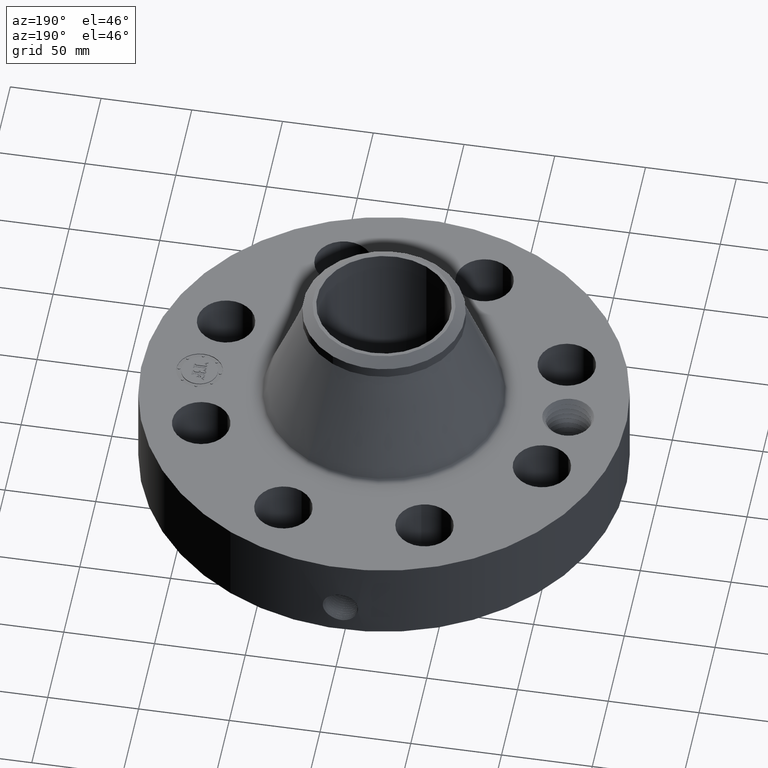
[diagram: clean part render]
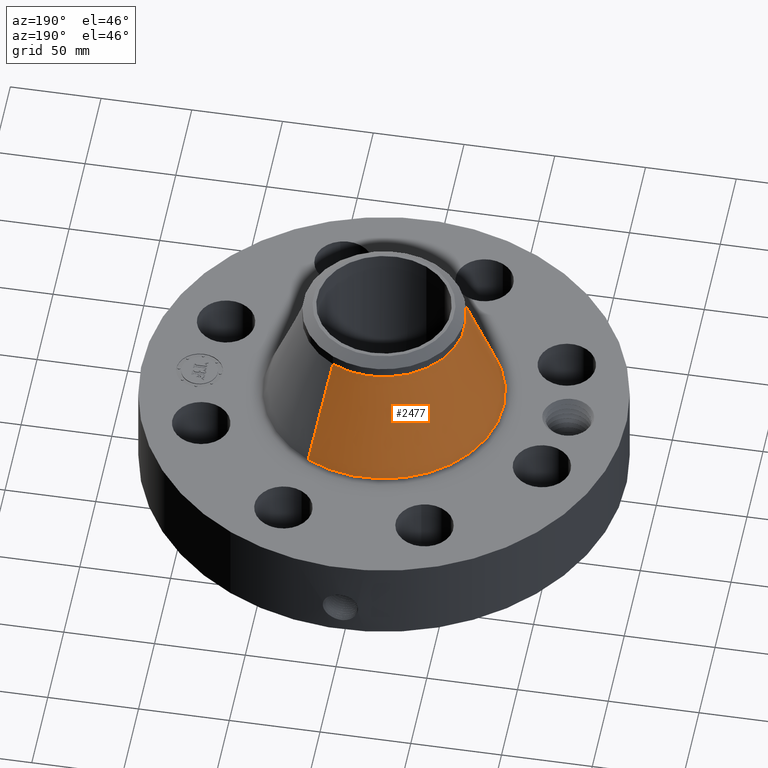
[diagram: same view with one face highlighted and labeled with its STEP entity id]
A machine part, auxiliary view. The second image highlights one B-rep face of the part: STEP entity #2477.
In plain terms, the highlighted conical surface has half-angle 20.551 deg.
Its self-contained STEP definition (entity closure, byte-faithful):
#1827=AXIS2_PLACEMENT_3D('Circle Axis2P3D',#1825,#1826,$) ;
#2438=AXIS2_PLACEMENT_3D('Cone Axis2P3D',#2435,#2436,#2437) ;
#2468=AXIS2_PLACEMENT_3D('Circle Axis2P3D',#2466,#2467,$) ;
#1803=CARTESIAN_POINT('Vertex',(1.24449518395,2.27803315394,2.20787575279)) ;
#1810=CARTESIAN_POINT('Vertex',(-1.24449518395,-2.27803315394,2.20787575279)) ;
#1825=CARTESIAN_POINT('Axis2P3D Location',(0.,0.,2.20787575279)) ;
#2435=CARTESIAN_POINT('Axis2P3D Location',(0.,0.,4.46400087906)) ;
#2440=CARTESIAN_POINT('Line Origine',(1.04174493825,1.90690131863,3.33593831592)) ;
#2444=CARTESIAN_POINT('Vertex',(0.838994692561,1.53576948331,4.46400087906)) ;
#2451=CARTESIAN_POINT('Vertex',(-0.838994692561,-1.53576948331,4.46400087906)) ;
#2454=CARTESIAN_POINT('Line Origine',(-1.04174493825,-1.90690131863,3.33593831592)) ;
#2466=CARTESIAN_POINT('Axis2P3D Location',(0.,0.,4.46400087906)) ;
#1826=DIRECTION('Axis2P3D Direction',(0.,0.,-0.0393700787402)) ;
#2436=DIRECTION('Axis2P3D Direction',(0.,0.,-0.0393700787402)) ;
#2437=DIRECTION('Axis2P3D XDirection',(-0.0188750212049,-0.0345504945626,0.)) ;
#2441=DIRECTION('Vector Direction',(0.00662580049611,0.0121284464546,-0.0368646531842)) ;
#2455=DIRECTION('Vector Direction',(-0.00662580049611,-0.0121284464546,-0.0368646531842)) ;
#2467=DIRECTION('Axis2P3D Direction',(0.,0.,-0.0393700787402)) ;
#2442=VECTOR('Line Direction',#2441,0.0393700787402) ;
#2456=VECTOR('Line Direction',#2455,0.0393700787402) ;
#2472=ORIENTED_EDGE('',*,*,#1829,.F.) ;
#2473=ORIENTED_EDGE('',*,*,#2458,.T.) ;
#2474=ORIENTED_EDGE('',*,*,#2470,.T.) ;
#2475=ORIENTED_EDGE('',*,*,#2446,.F.) ;
#2477=ADVANCED_FACE('PartBody',(#2476),#2439,.T.) ;
#1828=CIRCLE('generated circle',#1827,2.59580494516) ;
#2469=CIRCLE('generated circle',#2468,1.75000000001) ;
#2439=CONICAL_SURFACE('Cone',#2438,1.75000000001,0.358676636536) ;
#1829=EDGE_CURVE('',#1811,#1804,#1828,.T.) ;
#2446=EDGE_CURVE('',#1804,#2445,#2443,.F.) ;
#2458=EDGE_CURVE('',#1811,#2452,#2457,.F.) ;
#2470=EDGE_CURVE('',#2452,#2445,#2469,.T.) ;
#2471=EDGE_LOOP('',(#2472,#2473,#2474,#2475)) ;
#2476=FACE_OUTER_BOUND('',#2471,.T.) ;
#2443=LINE('Line',#2440,#2442) ;
#2457=LINE('Line',#2454,#2456) ;
#1804=VERTEX_POINT('',#1803) ;
#1811=VERTEX_POINT('',#1810) ;
#2445=VERTEX_POINT('',#2444) ;
#2452=VERTEX_POINT('',#2451) ;